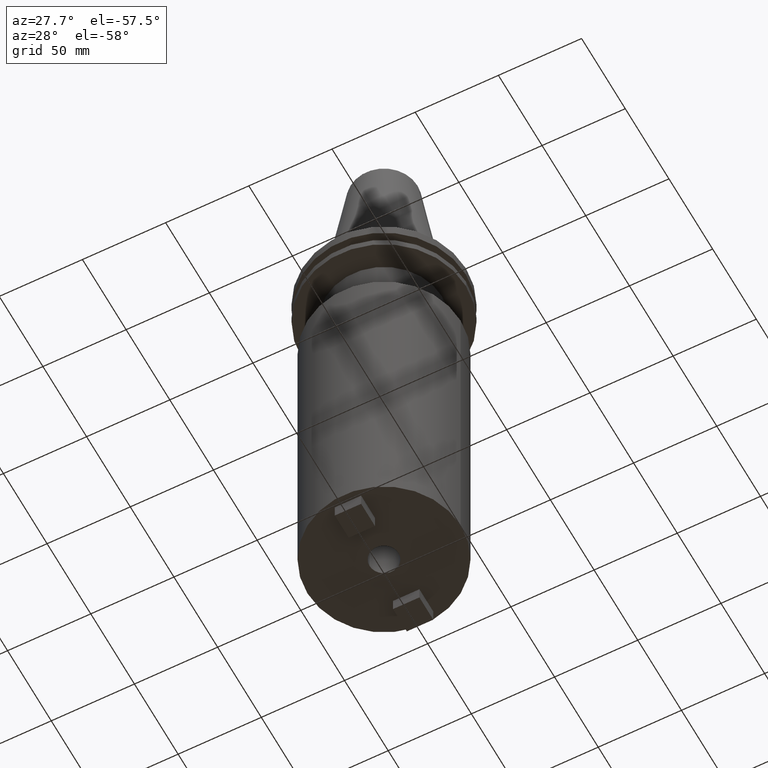
[diagram: clean part render]
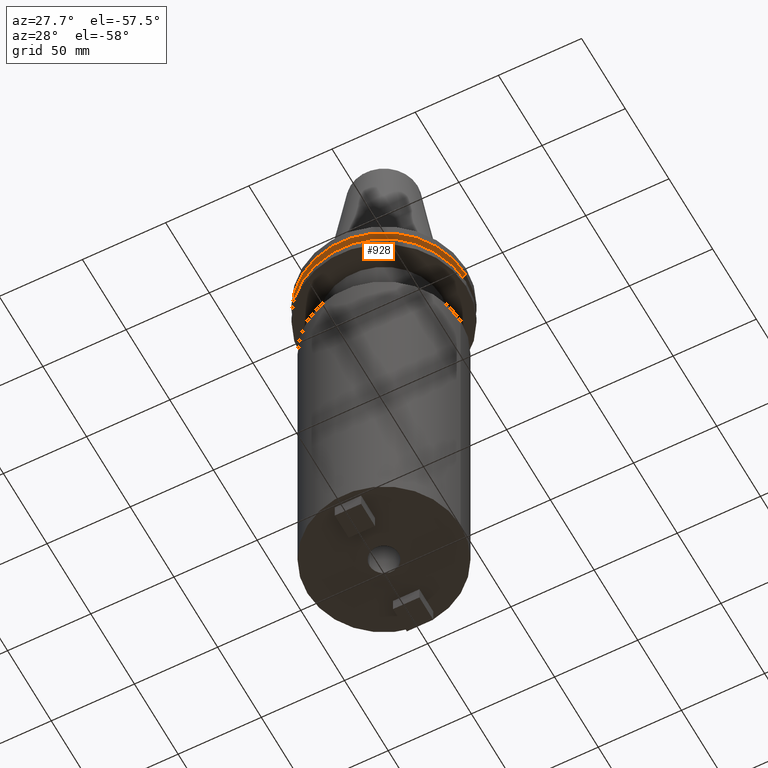
[diagram: same view with one face highlighted and labeled with its STEP entity id]
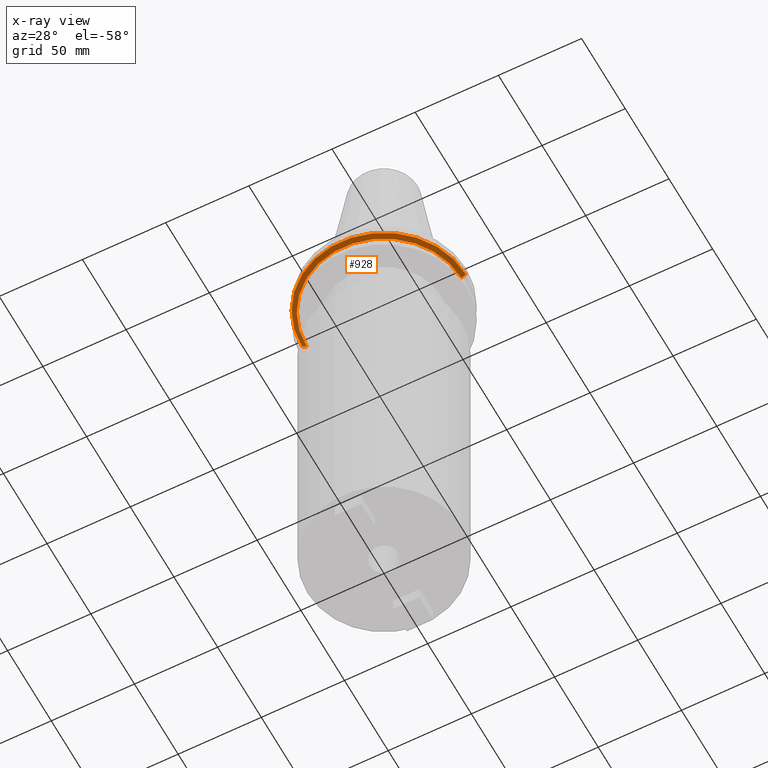
[diagram: x-ray of the same camera — body ghosted, the highlighted face saturated]
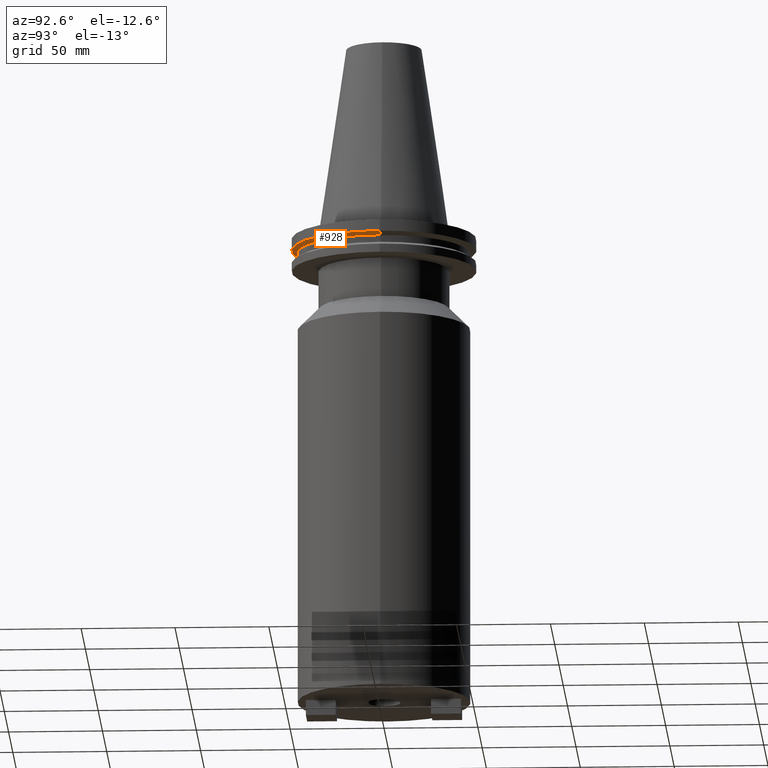
[diagram: same view with one face highlighted and labeled with its STEP entity id]
A machine part, auxiliary view. The second image highlights one B-rep face of the part: STEP entity #928.
The next image is the same camera in x-ray: the body ghosted, the highlighted face saturated — about 3% of this face is hidden behind the body in this view.
A second angle (auxiliary view) of the same face is appended — the face is thin or edge-on in the first view.
In plain terms, the highlighted conical surface has half-angle 60 deg.
Its self-contained STEP definition (entity closure, byte-faithful):
#37 = VERTEX_POINT ( 'NONE', #372 ) ;
#53 = DIRECTION ( 'NONE',  ( -0.000000000000000000, -0.000000000000000000, 1.000000000000000000 ) ) ;
#63 = EDGE_LOOP ( 'NONE', ( #1029, #501, #703, #1044 ) ) ;
#68 = AXIS2_PLACEMENT_3D ( 'NONE', #465, #313, #913 ) ;
#83 = DIRECTION ( 'NONE',  ( -0.8660254037844273833, 1.060575238724893110E-16, 0.5000000000000195399 ) ) ;
#99 = DIRECTION ( 'NONE',  ( -0.000000000000000000, -0.000000000000000000, 1.000000000000000000 ) ) ;
#185 = CARTESIAN_POINT ( 'NONE',  ( -49.21500000000000341, 6.027099222003699404E-15, -7.602389855251287187 ) ) ;
#220 = CIRCLE ( 'NONE', #842, 46.43919780457007818 ) ;
#241 = VECTOR ( 'NONE', #371, 1000.000000000000000 ) ;
#285 = EDGE_CURVE ( 'NONE', #1052, #539, #884, .T. ) ;
#313 = DIRECTION ( 'NONE',  ( -0.000000000000000000, -0.000000000000000000, 1.000000000000000000 ) ) ;
#342 = AXIS2_PLACEMENT_3D ( 'NONE', #671, #99, #695 ) ;
#371 = DIRECTION ( 'NONE',  ( 0.8660254037844273833, 0.000000000000000000, 0.5000000000000195399 ) ) ;
#372 = CARTESIAN_POINT ( 'NONE',  ( -46.43919780457007818, 5.857130358318727293E-15, -9.204999999999991189 ) ) ;
#465 = CARTESIAN_POINT ( 'NONE',  ( 0.000000000000000000, 0.000000000000000000, -7.602389855251287187 ) ) ;
#501 = ORIENTED_EDGE ( 'NONE', *, *, #1078, .T. ) ;
#539 = VERTEX_POINT ( 'NONE', #583 ) ;
#569 = VECTOR ( 'NONE', #83, 1000.000000000000000 ) ;
#574 = DIRECTION ( 'NONE',  ( 1.000000000000000000, 0.000000000000000000, 0.000000000000000000 ) ) ;
#583 = CARTESIAN_POINT ( 'NONE',  ( 49.21500000000000341, 0.000000000000000000, -7.602389855251287187 ) ) ;
#589 = CARTESIAN_POINT ( 'NONE',  ( 46.43919780457007818, 0.000000000000000000, -9.204999999999991189 ) ) ;
#643 = CONICAL_SURFACE ( 'NONE', #342, 46.43919780457007818, 1.047197551196575205 ) ;
#651 = CARTESIAN_POINT ( 'NONE',  ( 0.000000000000000000, 0.000000000000000000, -9.204999999999991189 ) ) ;
#671 = CARTESIAN_POINT ( 'NONE',  ( 0.000000000000000000, 0.000000000000000000, -9.204999999999991189 ) ) ;
#672 = LINE ( 'NONE', #854, #569 ) ;
#695 = DIRECTION ( 'NONE',  ( 1.000000000000000000, 0.000000000000000000, 0.000000000000000000 ) ) ;
#703 = ORIENTED_EDGE ( 'NONE', *, *, #285, .T. ) ;
#749 = EDGE_CURVE ( 'NONE', #1003, #539, #1037, .T. ) ;
#753 = FACE_OUTER_BOUND ( 'NONE', #63, .T. ) ;
#789 = EDGE_CURVE ( 'NONE', #37, #1003, #672, .T. ) ;
#804 = CARTESIAN_POINT ( 'NONE',  ( 46.43919780457007818, 0.000000000000000000, -9.204999999999991189 ) ) ;
#842 = AXIS2_PLACEMENT_3D ( 'NONE', #651, #53, #574 ) ;
#854 = CARTESIAN_POINT ( 'NONE',  ( -46.43919780457007818, 5.687161494633754392E-15, -9.204999999999991189 ) ) ;
#884 = LINE ( 'NONE', #804, #241 ) ;
#913 = DIRECTION ( 'NONE',  ( 1.000000000000000000, 0.000000000000000000, 0.000000000000000000 ) ) ;
#928 = ADVANCED_FACE ( 'NONE', ( #753 ), #643, .T. ) ;
#1003 = VERTEX_POINT ( 'NONE', #185 ) ;
#1029 = ORIENTED_EDGE ( 'NONE', *, *, #789, .F. ) ;
#1037 = CIRCLE ( 'NONE', #68, 49.21500000000000341 ) ;
#1044 = ORIENTED_EDGE ( 'NONE', *, *, #749, .F. ) ;
#1052 = VERTEX_POINT ( 'NONE', #589 ) ;
#1078 = EDGE_CURVE ( 'NONE', #37, #1052, #220, .T. ) ;